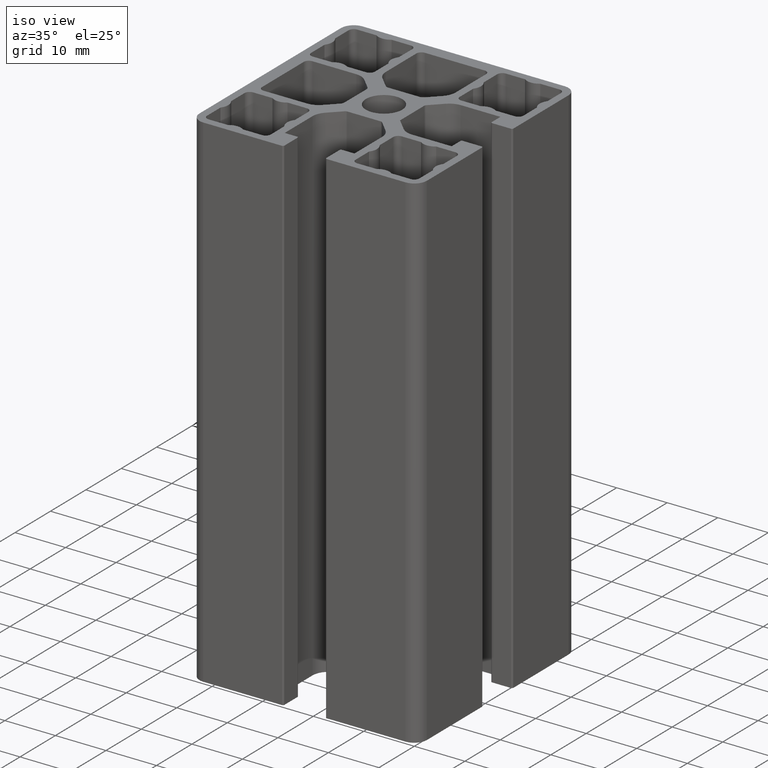
[diagram: clean part render]
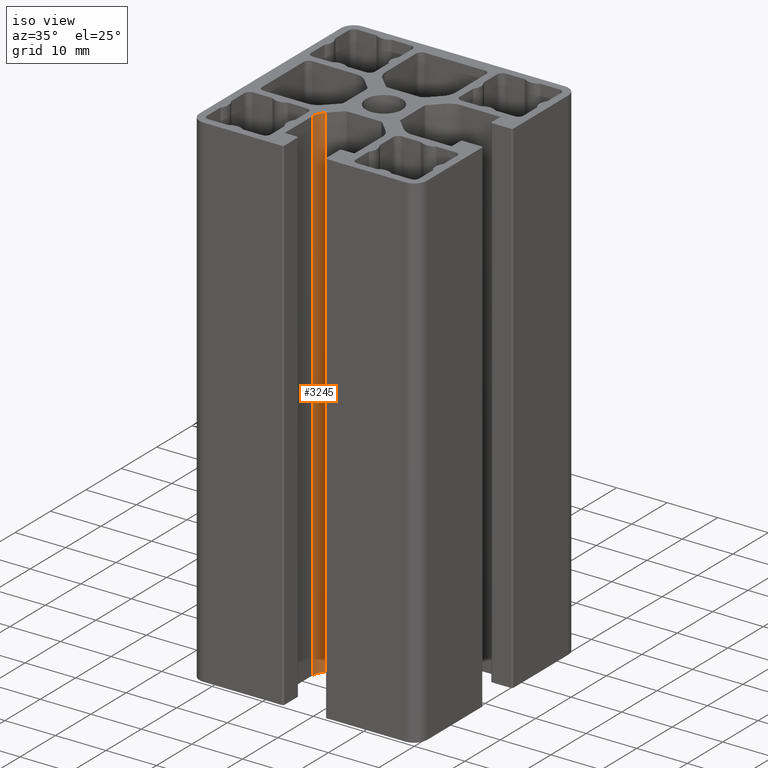
[diagram: same view with one face highlighted and labeled with its STEP entity id]
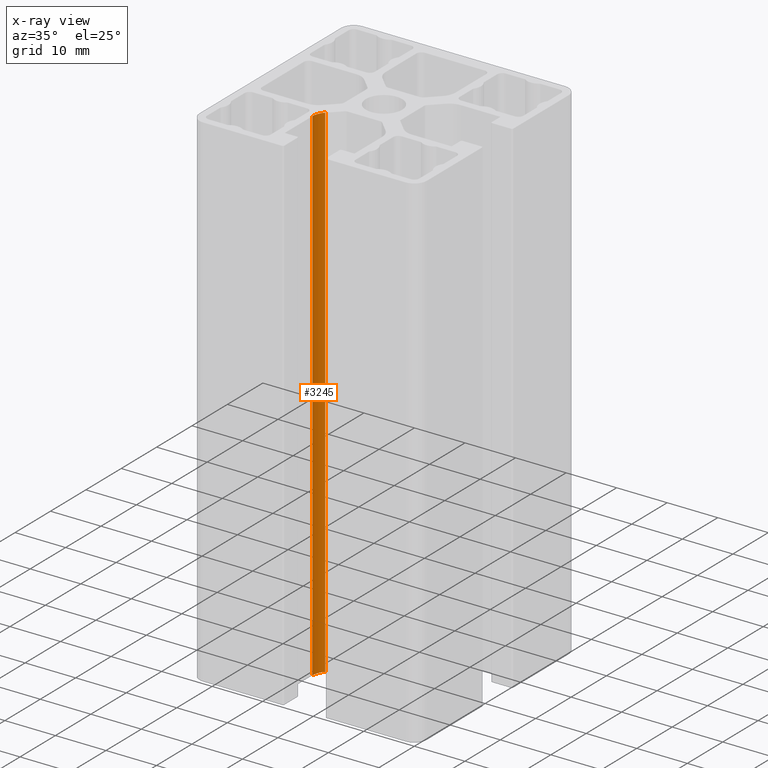
[diagram: x-ray of the same camera — body ghosted, the highlighted face saturated]
A machine part, iso view. The second image highlights one B-rep face of the part: STEP entity #3245.
The next image is the same camera in x-ray: the body ghosted, the highlighted face saturated — about 0% of this face is hidden behind the body in this view.
In plain terms, the highlighted cylindrical surface (edge-blend (fillet) strip) has radius 3.2 mm, axis along (0, 0, 1).
Its self-contained STEP definition (entity closure, byte-faithful):
#138=CIRCLE('',#3523,3.19999999998722);
#139=CIRCLE('',#3524,3.19999999998722);
#278=CYLINDRICAL_SURFACE('',#3522,3.19999999998722);
#414=FACE_OUTER_BOUND('',#582,.T.);
#582=EDGE_LOOP('',(#2464,#2465,#2466,#2467));
#840=LINE('',#5268,#1140);
#842=LINE('',#5274,#1142);
#1140=VECTOR('',#4256,100.);
#1142=VECTOR('',#4262,100.);
#1458=VERTEX_POINT('',#5265);
#1459=VERTEX_POINT('',#5267);
#1460=VERTEX_POINT('',#5271);
#1461=VERTEX_POINT('',#5273);
#1878=EDGE_CURVE('',#1459,#1458,#840,.T.);
#1880=EDGE_CURVE('',#1460,#1458,#138,.T.);
#1881=EDGE_CURVE('',#1461,#1460,#842,.T.);
#1882=EDGE_CURVE('',#1459,#1461,#139,.T.);
#2464=ORIENTED_EDGE('',*,*,#1880,.F.);
#2465=ORIENTED_EDGE('',*,*,#1881,.F.);
#2466=ORIENTED_EDGE('',*,*,#1882,.F.);
#2467=ORIENTED_EDGE('',*,*,#1878,.T.);
#3245=ADVANCED_FACE('',(#414),#278,.F.);
#3522=AXIS2_PLACEMENT_3D('',#5270,#4258,#4259);
#3523=AXIS2_PLACEMENT_3D('',#5272,#4260,#4261);
#3524=AXIS2_PLACEMENT_3D('',#5275,#4263,#4264);
#4256=DIRECTION('',(0.,0.,1.));
#4258=DIRECTION('center_axis',(0.,0.,1.));
#4259=DIRECTION('ref_axis',(-0.707106781186724,0.707106781186371,0.));
#4260=DIRECTION('center_axis',(0.,0.,-1.));
#4261=DIRECTION('ref_axis',(-0.707106781186724,0.707106781186371,0.));
#4262=DIRECTION('',(0.,0.,1.));
#4263=DIRECTION('center_axis',(0.,0.,1.));
#4264=DIRECTION('ref_axis',(-0.707106781186724,0.707106781186371,0.));
#5265=CARTESIAN_POINT('',(-5.96274169980127,-8.08406204336445,100.));
#5267=CARTESIAN_POINT('',(-5.96274169980127,-8.08406204336445,0.));
#5268=CARTESIAN_POINT('',(-5.96274169980127,-8.08406204336445,0.));
#5270=CARTESIAN_POINT('Origin',(-3.70000000001279,-10.3468037431518,0.));
#5271=CARTESIAN_POINT('',(-6.90000000000001,-10.3468037431533,100.));
#5272=CARTESIAN_POINT('Origin',(-3.70000000001279,-10.3468037431518,100.));
#5273=CARTESIAN_POINT('',(-6.90000000000001,-10.3468037431533,0.));
#5274=CARTESIAN_POINT('',(-6.90000000000001,-10.3468037431533,0.));
#5275=CARTESIAN_POINT('Origin',(-3.70000000001279,-10.3468037431518,0.));